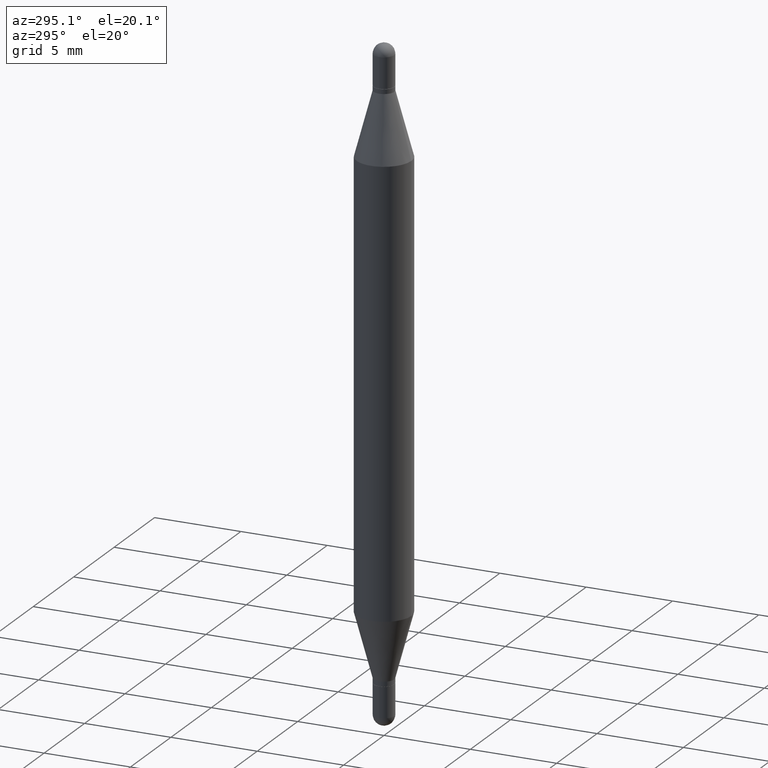
[diagram: clean part render]
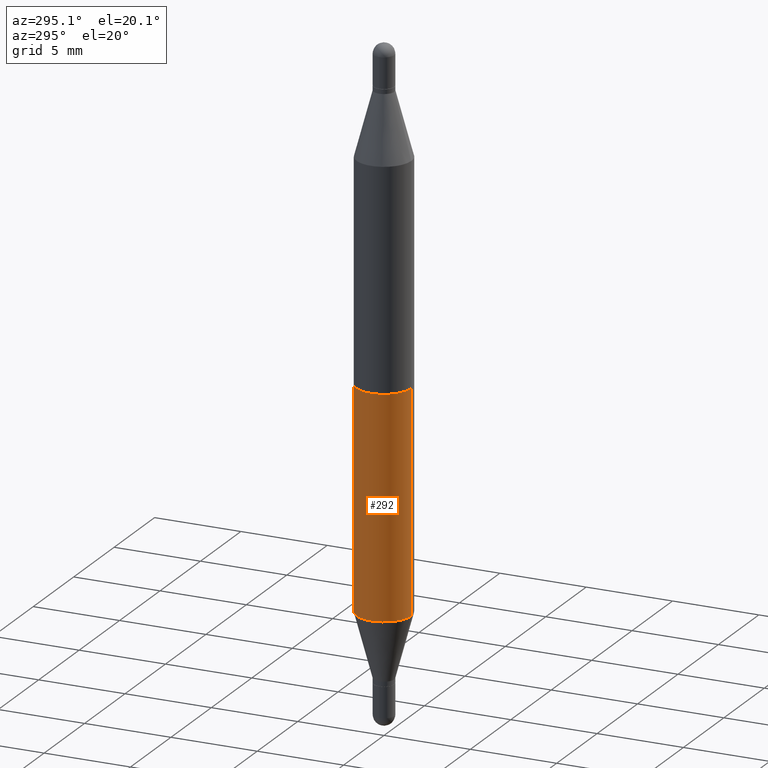
[diagram: same view with one face highlighted and labeled with its STEP entity id]
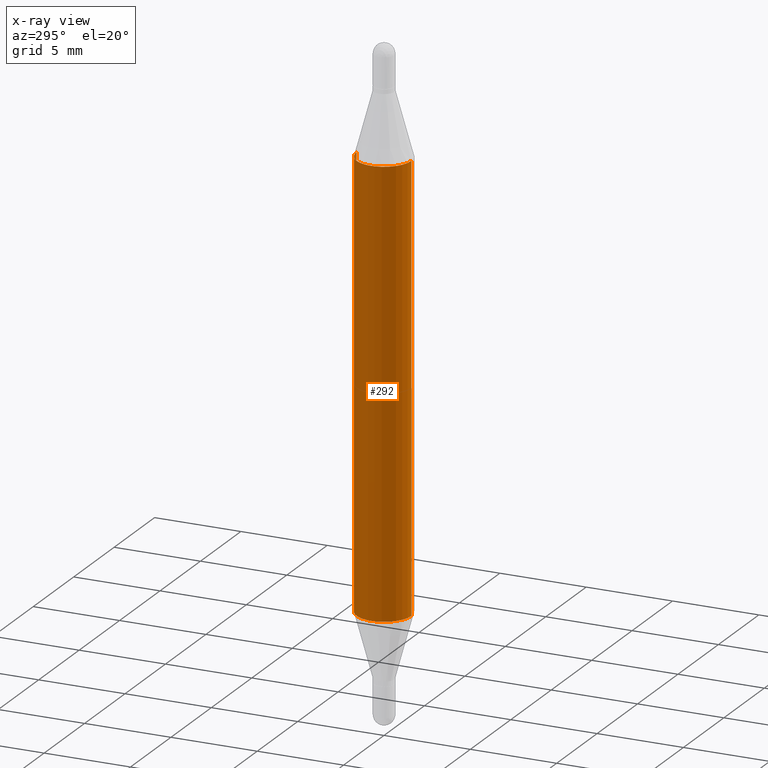
[diagram: x-ray of the same camera — body ghosted, the highlighted face saturated]
A machine part, auxiliary view. The second image highlights one B-rep face of the part: STEP entity #292.
The next image is the same camera in x-ray: the body ghosted, the highlighted face saturated — about 0% of this face is hidden behind the body in this view.
In plain terms, the highlighted cylindrical surface (edge-blend (fillet) strip) has radius 1.5875 mm, axis along (-0, -0, -1).
Its self-contained STEP definition (entity closure, byte-faithful):
#4 = DIRECTION ( 'NONE',  ( -2.445459728280500552E-29, -3.479601466901707095E-15, -1.000000000000000000 ) ) ;
#64 = VERTEX_POINT ( 'NONE', #437 ) ;
#106 = CARTESIAN_POINT ( 'NONE',  ( -4.364351673553610517E-16, -0.06250000000000435763, -1.250263415964434799 ) ) ;
#111 = AXIS2_PLACEMENT_3D ( 'NONE', #867, #177, #433 ) ;
#115 = CARTESIAN_POINT ( 'NONE',  ( 3.057468833483437762E-29, -4.365287638997689123E-15, -1.250263415964435021 ) ) ;
#122 = DIRECTION ( 'NONE',  ( -2.445459728280500552E-29, -3.479601466901707095E-15, -1.000000000000000000 ) ) ;
#124 = VECTOR ( 'NONE', #4, 39.37007874015748143 ) ;
#162 = EDGE_CURVE ( 'NONE', #64, #681, #338, .T. ) ;
#177 = DIRECTION ( 'NONE',  ( 2.445459728280500552E-29, 3.479601466901707095E-15, 1.000000000000000000 ) ) ;
#184 = VERTEX_POINT ( 'NONE', #263 ) ;
#196 = CARTESIAN_POINT ( 'NONE',  ( 0.000000000000000000, -5.228321854365732350E-15, -1.500000000000000444 ) ) ;
#263 = CARTESIAN_POINT ( 'NONE',  ( 4.287811248607512417E-16, 0.06249999999999911876, -0.2497365840355655620 ) ) ;
#292 = ADVANCED_FACE ( 'NONE', ( #701 ), #1047, .T. ) ;
#324 = ORIENTED_EDGE ( 'NONE', *, *, #1106, .T. ) ;
#338 = LINE ( 'NONE', #861, #124 ) ;
#358 = DIRECTION ( 'NONE',  ( -6.982962677686265922E-15, -1.000000000000000000, 4.370956789862821150E-15 ) ) ;
#433 = DIRECTION ( 'NONE',  ( -6.982962677686265922E-15, -1.000000000000000000, 3.278217592397115862E-15 ) ) ;
#437 = CARTESIAN_POINT ( 'NONE',  ( -4.364351673553610517E-16, -0.06250000000000087430, -0.2497365840355651456 ) ) ;
#458 = VECTOR ( 'NONE', #879, 39.37007874015748143 ) ;
#471 = VERTEX_POINT ( 'NONE', #581 ) ;
#491 = ORIENTED_EDGE ( 'NONE', *, *, #162, .F. ) ;
#537 = DIRECTION ( 'NONE',  ( -6.982962677686265922E-15, -1.000000000000000000, 4.370956789862821150E-15 ) ) ;
#581 = CARTESIAN_POINT ( 'NONE',  ( 4.287811248607390637E-16, 0.06249999999999563544, -1.250263415964435243 ) ) ;
#621 = CARTESIAN_POINT ( 'NONE',  ( 4.287811248607206733E-16, 0.06249999999999477501, -1.500000000000000666 ) ) ;
#649 = EDGE_CURVE ( 'NONE', #184, #471, #980, .T. ) ;
#659 = CIRCLE ( 'NONE', #111, 0.06250000000000000000 ) ;
#681 = VERTEX_POINT ( 'NONE', #106 ) ;
#701 = FACE_OUTER_BOUND ( 'NONE', #961, .T. ) ;
#767 = ORIENTED_EDGE ( 'NONE', *, *, #649, .T. ) ;
#801 = DIRECTION ( 'NONE',  ( -2.445459728280500552E-29, 3.491494338919266742E-15, 1.000000000000000000 ) ) ;
#813 = CIRCLE ( 'NONE', #1108, 0.06250000000000000000 ) ;
#861 = CARTESIAN_POINT ( 'NONE',  ( -4.364351673553916201E-16, -0.06250000000000521805, -1.500000000000000222 ) ) ;
#867 = CARTESIAN_POINT ( 'NONE',  ( 3.057468833483437762E-29, -8.779034381623444770E-16, -0.2497365840355653399 ) ) ;
#879 = DIRECTION ( 'NONE',  ( -2.445459728280500552E-29, -3.479601466901707095E-15, -1.000000000000000000 ) ) ;
#901 = AXIS2_PLACEMENT_3D ( 'NONE', #196, #122, #537 ) ;
#961 = EDGE_LOOP ( 'NONE', ( #994, #767, #324, #491 ) ) ;
#980 = LINE ( 'NONE', #621, #458 ) ;
#993 = EDGE_CURVE ( 'NONE', #184, #64, #659, .T. ) ;
#994 = ORIENTED_EDGE ( 'NONE', *, *, #993, .F. ) ;
#1047 = CYLINDRICAL_SURFACE ( 'NONE', #901, 0.06250000000000000000 ) ;
#1106 = EDGE_CURVE ( 'NONE', #471, #681, #813, .T. ) ;
#1108 = AXIS2_PLACEMENT_3D ( 'NONE', #115, #801, #358 ) ;